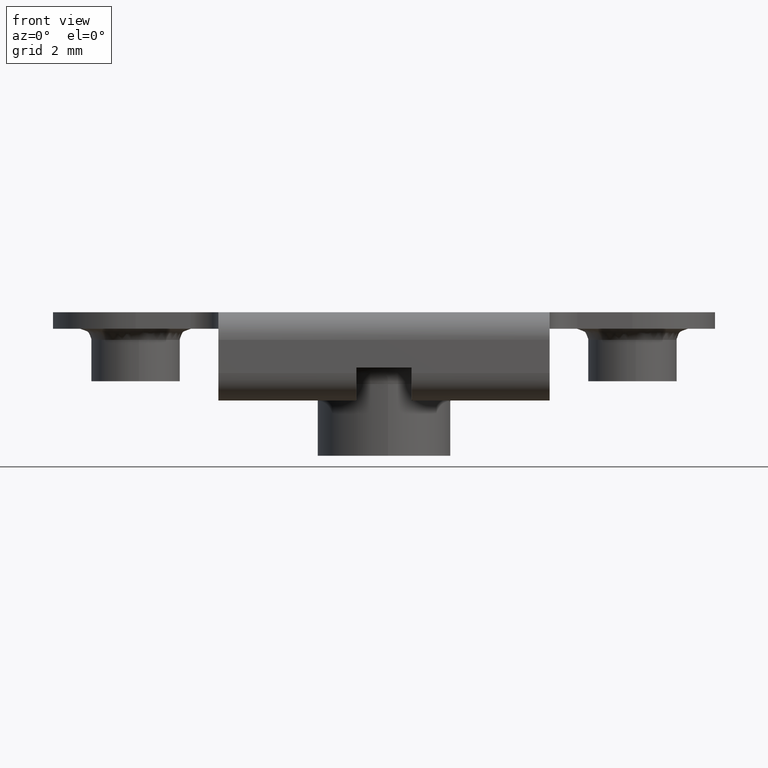
[diagram: clean part render]
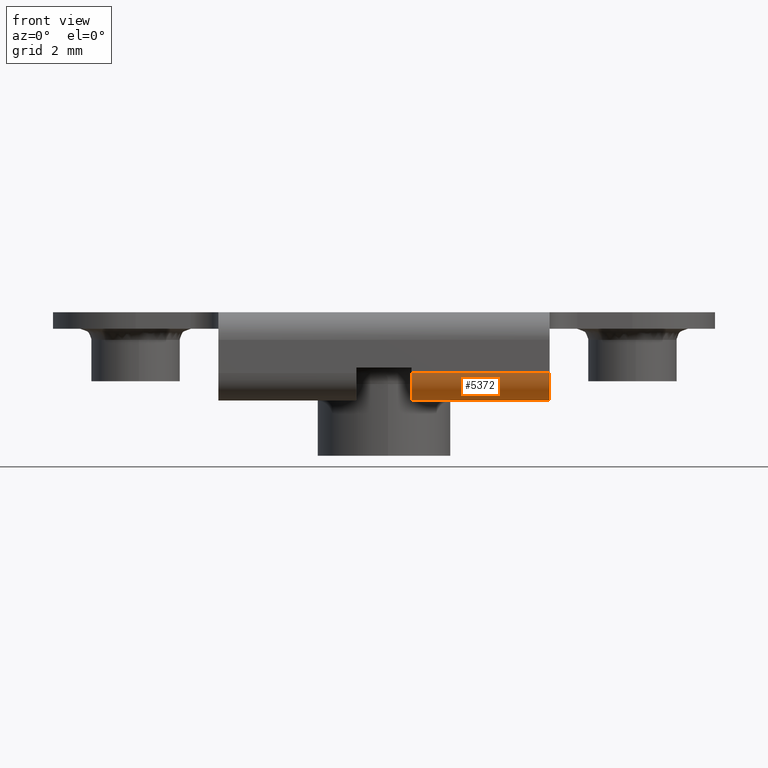
[diagram: same view with one face highlighted and labeled with its STEP entity id]
A machine part, front view. The second image highlights one B-rep face of the part: STEP entity #5372.
In plain terms, the highlighted face is a freeform B-spline surface patch.
Its self-contained STEP definition (entity closure, byte-faithful):
#3091=CARTESIAN_POINT('',(6.0,-4.999999999995400,-2.199999999986035));
#3092=VERTEX_POINT('',#3091);
#3098=CARTESIAN_POINT('',(6.0,-3.999999999995395,-3.199999999984400));
#3099=VERTEX_POINT('',#3098);
#3100=CARTESIAN_POINT('',(6.0,-4.999999999995396,-2.199999999986035));
#3101=CARTESIAN_POINT('',(6.0,-4.999999999993760,-3.199999999984400));
#3102=CARTESIAN_POINT('',(6.0,-3.999999999995395,-3.199999999984400));
#3110=(BOUNDED_CURVE()B_SPLINE_CURVE(2,(#3100,#3101,#3102),.UNSPECIFIED.,.F.,.U.)CURVE()GEOMETRIC_REPRESENTATION_ITEM()QUASI_UNIFORM_CURVE()RATIONAL_B_SPLINE_CURVE((1.0,0.707106781187126,1.0))REPRESENTATION_ITEM(''));
#3111=EDGE_CURVE('',#3092,#3099,#3110,.T.);
#4267=CARTESIAN_POINT('',(1.062820978371222,-3.999999999995395,-3.199999999984440));
#4268=VERTEX_POINT('',#4267);
#4282=CARTESIAN_POINT('',(1.0,-4.242640687118775,-3.170116228563375));
#4283=VERTEX_POINT('',#4282);
#4284=CARTESIAN_POINT('',(1.0,-4.242640687118775,-3.170116228563375));
#4285=CARTESIAN_POINT('',(1.000000000000000,-4.200989413674625,-3.180533839680813));
#4286=CARTESIAN_POINT('',(1.005127666796706,-4.159627792822231,-3.188039798585111));
#4287=CARTESIAN_POINT('',(1.020864978455419,-4.098151681215675,-3.195385436104028));
#4288=CARTESIAN_POINT('',(1.027508420420435,-4.077697441924424,-3.197174472484389));
#4289=CARTESIAN_POINT('',(1.043264742676600,-4.038074141401827,-3.199471950988584));
#4290=CARTESIAN_POINT('',(1.052401211303420,-4.018773865278695,-3.199999999984400));
#4291=CARTESIAN_POINT('',(1.062820978371214,-3.999999999995410,-3.199999999984400));
#4292=B_SPLINE_CURVE_WITH_KNOTS('',3,(#4284,#4285,#4286,#4287,#4288,#4289,#4290,#4291),.UNSPECIFIED.,.F.,.U.,(4,2,2,4),(0.0,0.500000000000000,0.750000000000000,1.0),.UNSPECIFIED.);
#4293=EDGE_CURVE('',#4283,#4268,#4292,.T.);
#4932=CARTESIAN_POINT('',(1.0,-4.999999999997440,-2.199999999984400));
#4933=VERTEX_POINT('',#4932);
#4934=CARTESIAN_POINT('',(1.0,-4.242640687118775,-3.170116228563376));
#4935=CARTESIAN_POINT('',(1.0,-4.999999999995394,-2.980689252019694));
#4936=CARTESIAN_POINT('',(1.0,-4.999999999995396,-2.199999999984400));
#4944=(BOUNDED_CURVE()B_SPLINE_CURVE(2,(#4934,#4935,#4936),.UNSPECIFIED.,.F.,.U.)CURVE()GEOMETRIC_REPRESENTATION_ITEM()QUASI_UNIFORM_CURVE()RATIONAL_B_SPLINE_CURVE((1.0,0.788238760504512,1.0))REPRESENTATION_ITEM(''));
#4945=EDGE_CURVE('',#4283,#4933,#4944,.T.);
#5336=CARTESIAN_POINT('',(1.062820978371222,-3.999999999995395,-3.199999999984440));
#5337=CARTESIAN_POINT('',(6.0,-3.999999999995395,-3.199999999984400));
#5338=QUASI_UNIFORM_CURVE('',1,(#5336,#5337),.UNSPECIFIED.,.F.,.U.);
#5339=EDGE_CURVE('',#4268,#3099,#5338,.T.);
#5347=CARTESIAN_POINT('',(0.875000000000000,-3.973823051685887,-3.199657324959914));
#5348=CARTESIAN_POINT('',(6.128125000000001,-3.973823051685887,-3.199657324959914));
#5349=CARTESIAN_POINT('',(0.875000000000000,-5.074984800548433,-3.228492260152421));
#5350=CARTESIAN_POINT('',(6.128125000000003,-5.074984800548433,-3.228492260152421));
#5351=CARTESIAN_POINT('',(0.875000000000000,-4.997524479376320,-2.129679924360048));
#5352=CARTESIAN_POINT('',(6.128125000000001,-4.997524479376320,-2.129679924360048));
#5360=(BOUNDED_SURFACE()B_SPLINE_SURFACE(1,2,((#5347,#5349,#5351),(#5348,#5350,#5352)),.UNSPECIFIED.,.F.,.F.,.U.)B_SPLINE_SURFACE_WITH_KNOTS((2,2),(3,3),(0.0,5.253125000000002),(0.0,0.994518632334191),.UNSPECIFIED.)GEOMETRIC_REPRESENTATION_ITEM()RATIONAL_B_SPLINE_SURFACE(((1.0,0.670944223154768,0.996392648609106),(1.0,0.670944223154768,0.996392648609106)))REPRESENTATION_ITEM('')SURFACE());
#5361=ORIENTED_EDGE('',*,*,#4945,.F.);
#5362=ORIENTED_EDGE('',*,*,#4293,.T.);
#5363=ORIENTED_EDGE('',*,*,#5339,.T.);
#5364=ORIENTED_EDGE('',*,*,#3111,.F.);
#5365=CARTESIAN_POINT('',(1.0,-4.999999999997440,-2.199999999984400));
#5366=CARTESIAN_POINT('',(6.0,-4.999999999995400,-2.199999999986035));
#5367=QUASI_UNIFORM_CURVE('',1,(#5365,#5366),.UNSPECIFIED.,.F.,.U.);
#5368=EDGE_CURVE('',#4933,#3092,#5367,.T.);
#5369=ORIENTED_EDGE('',*,*,#5368,.F.);
#5370=EDGE_LOOP('',(#5361,#5362,#5363,#5364,#5369));
#5371=FACE_OUTER_BOUND('',#5370,.T.);
#5372=ADVANCED_FACE('',(#5371),#5360,.T.);